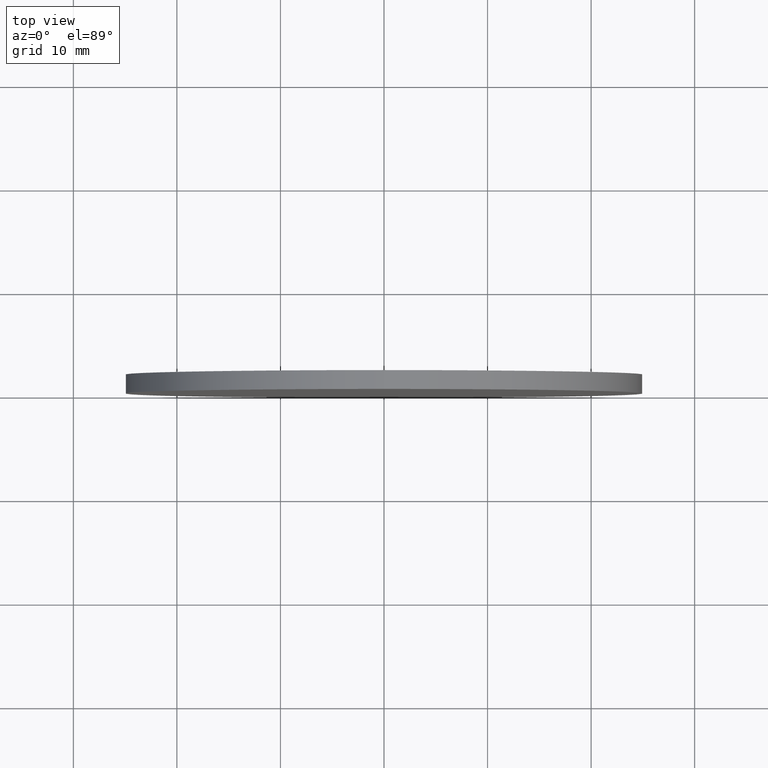
[diagram: clean part render]
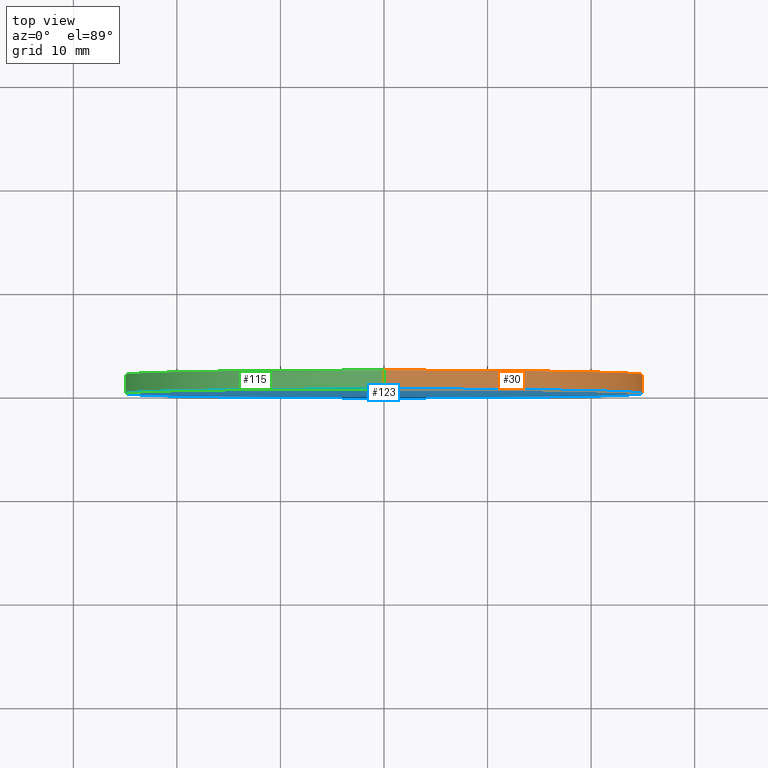
[diagram: same view with three faces highlighted in distinct colors, each labeled with its STEP entity id]
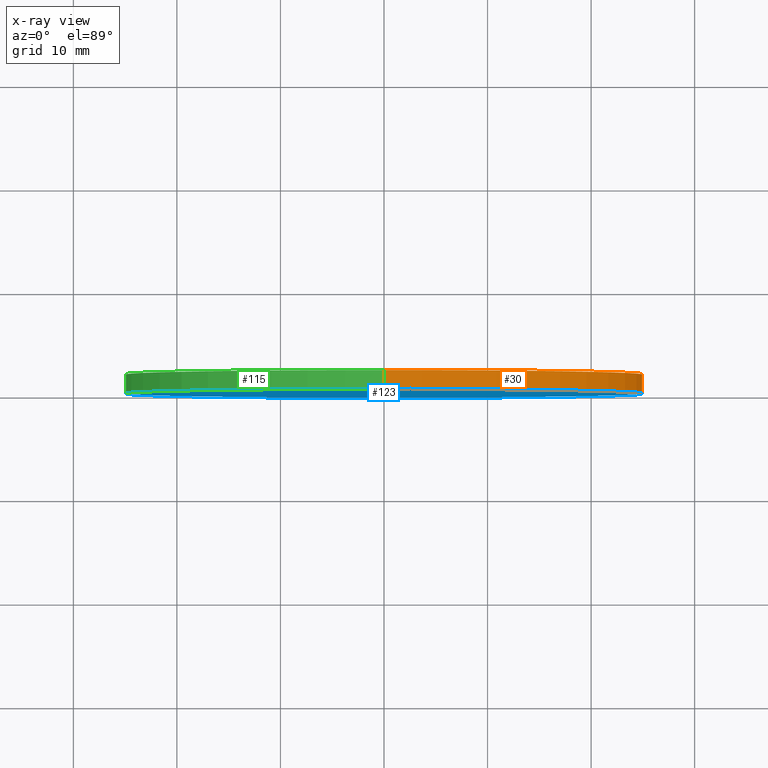
[diagram: x-ray of the same camera — body ghosted, the three highlighted faces saturated]
A machine part, top view with three faces highlighted in distinct colors.
The next image is the same camera in x-ray (body ghosted, the three faces saturated) — at least one of them is partly hidden behind the body in this view.
Their STEP definitions:

[orange] entity #30 — the highlighted cylindrical surface (partial cylindrical patch) has radius 25 mm, axis along (-0, -1, -0).
#1 = LINE ( 'NONE', #21, #127 ) ;
#4 = EDGE_CURVE ( 'NONE', #65, #57, #15, .T. ) ;
#10 = DIRECTION ( 'NONE',  ( -0.0000000000000000000, -1.000000000000000000, -0.0000000000000000000 ) ) ;
#12 = CARTESIAN_POINT ( 'NONE',  ( 0.0000000000000000000, 1.820000000000000100, 0.0000000000000000000 ) ) ;
#14 = DIRECTION ( 'NONE',  ( -0.0000000000000000000, -1.000000000000000000, -0.0000000000000000000 ) ) ;
#15 = LINE ( 'NONE', #71, #88 ) ;
#17 = EDGE_LOOP ( 'NONE', ( #39, #29, #43, #133 ) ) ;
#20 = AXIS2_PLACEMENT_3D ( 'NONE', #45, #44, #54 ) ;
#21 = CARTESIAN_POINT ( 'NONE',  ( 3.061616997868383000E-015, 1.820000000000000100, 25.00000000000000000 ) ) ;
#26 = AXIS2_PLACEMENT_3D ( 'NONE', #137, #97, #86 ) ;
#29 = ORIENTED_EDGE ( 'NONE', *, *, #101, .T. ) ;
#30 = ADVANCED_FACE ( 'NONE', ( #70 ), #122, .T. ) ;
#37 = DIRECTION ( 'NONE',  ( 0.0000000000000000000, 0.0000000000000000000, -1.000000000000000000 ) ) ;
#39 = ORIENTED_EDGE ( 'NONE', *, *, #78, .F. ) ;
#43 = ORIENTED_EDGE ( 'NONE', *, *, #68, .T. ) ;
#44 = DIRECTION ( 'NONE',  ( 0.0000000000000000000, 1.000000000000000000, 0.0000000000000000000 ) ) ;
#45 = CARTESIAN_POINT ( 'NONE',  ( 0.0000000000000000000, 1.820000000000000100, 0.0000000000000000000 ) ) ;
#51 = CARTESIAN_POINT ( 'NONE',  ( 3.061616997868383000E-015, 1.820000000000000100, 25.00000000000000000 ) ) ;
#52 = DIRECTION ( 'NONE',  ( -0.0000000000000000000, -1.000000000000000000, -0.0000000000000000000 ) ) ;
#54 = DIRECTION ( 'NONE',  ( 0.0000000000000000000, 0.0000000000000000000, 1.000000000000000000 ) ) ;
#57 = VERTEX_POINT ( 'NONE', #72 ) ;
#64 = CARTESIAN_POINT ( 'NONE',  ( 3.061616997868383000E-015, 0.0000000000000000000, 25.00000000000000000 ) ) ;
#65 = VERTEX_POINT ( 'NONE', #131 ) ;
#68 = EDGE_CURVE ( 'NONE', #128, #57, #136, .T. ) ;
#70 = FACE_OUTER_BOUND ( 'NONE', #17, .T. ) ;
#71 = CARTESIAN_POINT ( 'NONE',  ( 0.0000000000000000000, 1.820000000000000100, -25.00000000000000000 ) ) ;
#72 = CARTESIAN_POINT ( 'NONE',  ( 0.0000000000000000000, 0.0000000000000000000, -25.00000000000000000 ) ) ;
#78 = EDGE_CURVE ( 'NONE', #135, #65, #104, .T. ) ;
#86 = DIRECTION ( 'NONE',  ( 0.0000000000000000000, 0.0000000000000000000, 1.000000000000000000 ) ) ;
#88 = VECTOR ( 'NONE', #52, 1000.000000000000000 ) ;
#97 = DIRECTION ( 'NONE',  ( 0.0000000000000000000, 1.000000000000000000, 0.0000000000000000000 ) ) ;
#101 = EDGE_CURVE ( 'NONE', #135, #128, #1, .T. ) ;
#104 = CIRCLE ( 'NONE', #20, 25.00000000000000000 ) ;
#122 = CYLINDRICAL_SURFACE ( 'NONE', #134, 25.00000000000000000 ) ;
#127 = VECTOR ( 'NONE', #10, 1000.000000000000000 ) ;
#128 = VERTEX_POINT ( 'NONE', #64 ) ;
#131 = CARTESIAN_POINT ( 'NONE',  ( 0.0000000000000000000, 1.820000000000000100, -25.00000000000000000 ) ) ;
#133 = ORIENTED_EDGE ( 'NONE', *, *, #4, .F. ) ;
#134 = AXIS2_PLACEMENT_3D ( 'NONE', #12, #14, #37 ) ;
#135 = VERTEX_POINT ( 'NONE', #51 ) ;
#136 = CIRCLE ( 'NONE', #26, 25.00000000000000000 ) ;
#137 = CARTESIAN_POINT ( 'NONE',  ( 0.0000000000000000000, 0.0000000000000000000, 0.0000000000000000000 ) ) ;

[blue] entity #123 — the highlighted planar face has unit normal (0, 1, 0).
#18 = DIRECTION ( 'NONE',  ( 0.0000000000000000000, 1.000000000000000000, 0.0000000000000000000 ) ) ;
#25 = EDGE_LOOP ( 'NONE', ( #112, #56 ) ) ;
#26 = AXIS2_PLACEMENT_3D ( 'NONE', #137, #97, #86 ) ;
#27 = CARTESIAN_POINT ( 'NONE',  ( 0.0000000000000000000, 0.0000000000000000000, 0.0000000000000000000 ) ) ;
#32 = DIRECTION ( 'NONE',  ( 0.0000000000000000000, 1.000000000000000000, 0.0000000000000000000 ) ) ;
#50 = FACE_OUTER_BOUND ( 'NONE', #25, .T. ) ;
#56 = ORIENTED_EDGE ( 'NONE', *, *, #68, .F. ) ;
#57 = VERTEX_POINT ( 'NONE', #72 ) ;
#63 = CARTESIAN_POINT ( 'NONE',  ( 0.0000000000000000000, 0.0000000000000000000, 0.0000000000000000000 ) ) ;
#64 = CARTESIAN_POINT ( 'NONE',  ( 3.061616997868383000E-015, 0.0000000000000000000, 25.00000000000000000 ) ) ;
#67 = AXIS2_PLACEMENT_3D ( 'NONE', #63, #18, #81 ) ;
#68 = EDGE_CURVE ( 'NONE', #128, #57, #136, .T. ) ;
#69 = EDGE_CURVE ( 'NONE', #57, #128, #87, .T. ) ;
#72 = CARTESIAN_POINT ( 'NONE',  ( 0.0000000000000000000, 0.0000000000000000000, -25.00000000000000000 ) ) ;
#77 = PLANE ( 'NONE',  #67 ) ;
#81 = DIRECTION ( 'NONE',  ( 0.0000000000000000000, -0.0000000000000000000, 1.000000000000000000 ) ) ;
#86 = DIRECTION ( 'NONE',  ( 0.0000000000000000000, 0.0000000000000000000, 1.000000000000000000 ) ) ;
#87 = CIRCLE ( 'NONE', #89, 25.00000000000000000 ) ;
#89 = AXIS2_PLACEMENT_3D ( 'NONE', #27, #32, #100 ) ;
#97 = DIRECTION ( 'NONE',  ( 0.0000000000000000000, 1.000000000000000000, 0.0000000000000000000 ) ) ;
#100 = DIRECTION ( 'NONE',  ( 0.0000000000000000000, 0.0000000000000000000, 1.000000000000000000 ) ) ;
#112 = ORIENTED_EDGE ( 'NONE', *, *, #69, .F. ) ;
#123 = ADVANCED_FACE ( 'NONE', ( #50 ), #77, .F. ) ;
#128 = VERTEX_POINT ( 'NONE', #64 ) ;
#136 = CIRCLE ( 'NONE', #26, 25.00000000000000000 ) ;
#137 = CARTESIAN_POINT ( 'NONE',  ( 0.0000000000000000000, 0.0000000000000000000, 0.0000000000000000000 ) ) ;

[green] entity #115 — the highlighted cylindrical surface (partial cylindrical patch) has radius 25 mm, axis along (-0, -1, -0).
#1 = LINE ( 'NONE', #21, #127 ) ;
#4 = EDGE_CURVE ( 'NONE', #65, #57, #15, .T. ) ;
#7 = EDGE_LOOP ( 'NONE', ( #40, #19, #84, #116 ) ) ;
#10 = DIRECTION ( 'NONE',  ( -0.0000000000000000000, -1.000000000000000000, -0.0000000000000000000 ) ) ;
#15 = LINE ( 'NONE', #71, #88 ) ;
#19 = ORIENTED_EDGE ( 'NONE', *, *, #129, .F. ) ;
#21 = CARTESIAN_POINT ( 'NONE',  ( 3.061616997868383000E-015, 1.820000000000000100, 25.00000000000000000 ) ) ;
#27 = CARTESIAN_POINT ( 'NONE',  ( 0.0000000000000000000, 0.0000000000000000000, 0.0000000000000000000 ) ) ;
#32 = DIRECTION ( 'NONE',  ( 0.0000000000000000000, 1.000000000000000000, 0.0000000000000000000 ) ) ;
#33 = CYLINDRICAL_SURFACE ( 'NONE', #96, 25.00000000000000000 ) ;
#35 = FACE_OUTER_BOUND ( 'NONE', #7, .T. ) ;
#38 = AXIS2_PLACEMENT_3D ( 'NONE', #93, #74, #92 ) ;
#40 = ORIENTED_EDGE ( 'NONE', *, *, #101, .F. ) ;
#51 = CARTESIAN_POINT ( 'NONE',  ( 3.061616997868383000E-015, 1.820000000000000100, 25.00000000000000000 ) ) ;
#52 = DIRECTION ( 'NONE',  ( -0.0000000000000000000, -1.000000000000000000, -0.0000000000000000000 ) ) ;
#57 = VERTEX_POINT ( 'NONE', #72 ) ;
#59 = CARTESIAN_POINT ( 'NONE',  ( 0.0000000000000000000, 1.820000000000000100, 0.0000000000000000000 ) ) ;
#60 = DIRECTION ( 'NONE',  ( -0.0000000000000000000, -1.000000000000000000, -0.0000000000000000000 ) ) ;
#64 = CARTESIAN_POINT ( 'NONE',  ( 3.061616997868383000E-015, 0.0000000000000000000, 25.00000000000000000 ) ) ;
#65 = VERTEX_POINT ( 'NONE', #131 ) ;
#69 = EDGE_CURVE ( 'NONE', #57, #128, #87, .T. ) ;
#71 = CARTESIAN_POINT ( 'NONE',  ( 0.0000000000000000000, 1.820000000000000100, -25.00000000000000000 ) ) ;
#72 = CARTESIAN_POINT ( 'NONE',  ( 0.0000000000000000000, 0.0000000000000000000, -25.00000000000000000 ) ) ;
#74 = DIRECTION ( 'NONE',  ( 0.0000000000000000000, 1.000000000000000000, 0.0000000000000000000 ) ) ;
#84 = ORIENTED_EDGE ( 'NONE', *, *, #4, .T. ) ;
#87 = CIRCLE ( 'NONE', #89, 25.00000000000000000 ) ;
#88 = VECTOR ( 'NONE', #52, 1000.000000000000000 ) ;
#89 = AXIS2_PLACEMENT_3D ( 'NONE', #27, #32, #100 ) ;
#90 = CIRCLE ( 'NONE', #38, 25.00000000000000000 ) ;
#92 = DIRECTION ( 'NONE',  ( 0.0000000000000000000, 0.0000000000000000000, 1.000000000000000000 ) ) ;
#93 = CARTESIAN_POINT ( 'NONE',  ( 0.0000000000000000000, 1.820000000000000100, 0.0000000000000000000 ) ) ;
#96 = AXIS2_PLACEMENT_3D ( 'NONE', #59, #60, #140 ) ;
#100 = DIRECTION ( 'NONE',  ( 0.0000000000000000000, 0.0000000000000000000, 1.000000000000000000 ) ) ;
#101 = EDGE_CURVE ( 'NONE', #135, #128, #1, .T. ) ;
#115 = ADVANCED_FACE ( 'NONE', ( #35 ), #33, .T. ) ;
#116 = ORIENTED_EDGE ( 'NONE', *, *, #69, .T. ) ;
#127 = VECTOR ( 'NONE', #10, 1000.000000000000000 ) ;
#128 = VERTEX_POINT ( 'NONE', #64 ) ;
#129 = EDGE_CURVE ( 'NONE', #65, #135, #90, .T. ) ;
#131 = CARTESIAN_POINT ( 'NONE',  ( 0.0000000000000000000, 1.820000000000000100, -25.00000000000000000 ) ) ;
#135 = VERTEX_POINT ( 'NONE', #51 ) ;
#140 = DIRECTION ( 'NONE',  ( 0.0000000000000000000, 0.0000000000000000000, -1.000000000000000000 ) ) ;